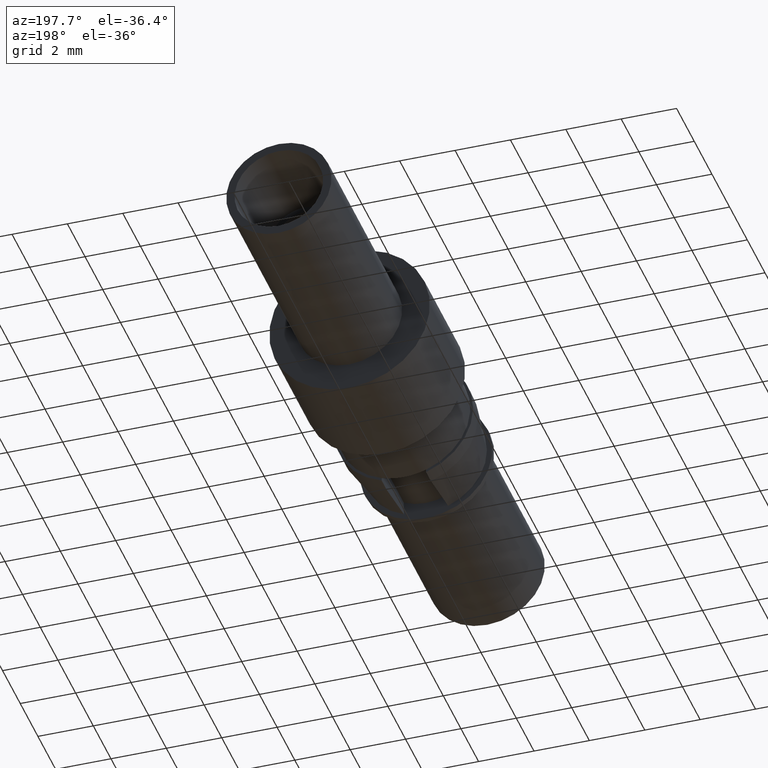
[diagram: clean part render]
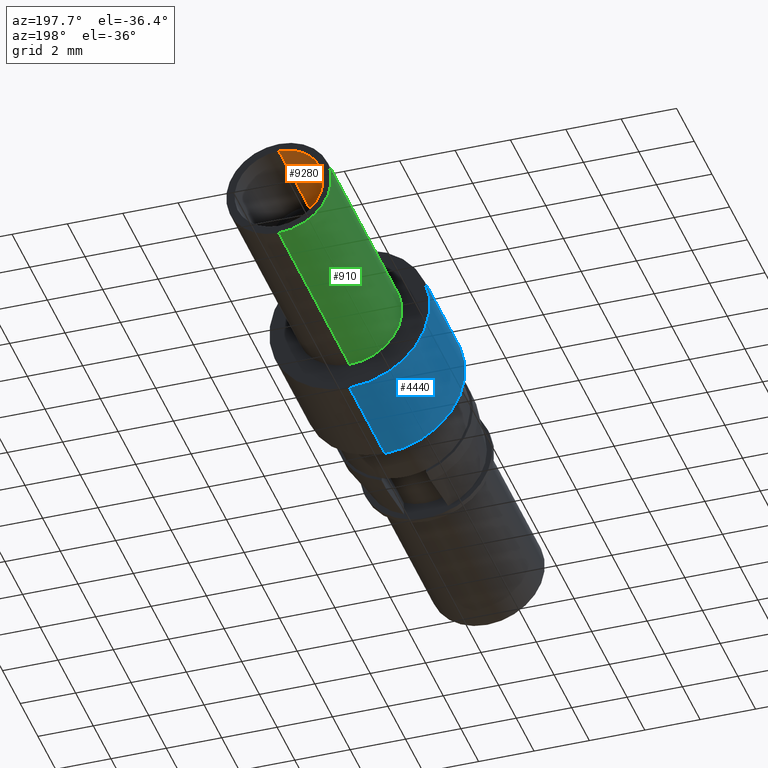
[diagram: same view with three faces highlighted in distinct colors, each labeled with its STEP entity id]
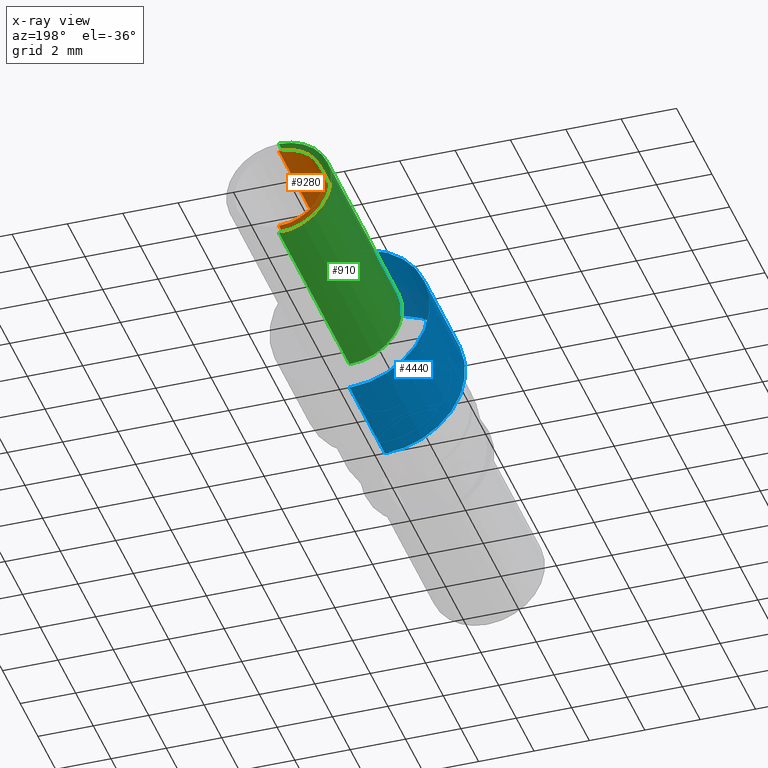
[diagram: x-ray of the same camera — body ghosted, the three highlighted faces saturated]
A machine part, auxiliary view with three faces highlighted in distinct colors.
The next image is the same camera in x-ray (body ghosted, the three faces saturated) — at least one of them is partly hidden behind the body in this view.
Their STEP definitions:

[orange] entity #9280 — the highlighted cylindrical surface (partial cylindrical patch) has radius 1.6 mm, axis along (0, 1, -0).
#1860=CARTESIAN_POINT('',(66.6468230000002,77.3795149999963,
-5.24999999999949));
#1870=DIRECTION('',(0.,0.,1.));
#1880=DIRECTION('',(0.,1.,0.));
#1890=AXIS2_PLACEMENT_3D('',#1860,#1870,#1880);
#1900=CIRCLE('',#1890,1.6);
#1910=CARTESIAN_POINT('',(66.6468230000002,78.9795149999963,
-5.24999999999949));
#1920=VERTEX_POINT('',#1910);
#1930=CARTESIAN_POINT('',(66.6468230000002,75.7795149999963,
-5.24999999999949));
#1940=VERTEX_POINT('',#1930);
#1970=EDGE_CURVE('',#1940,#1920,#1900,.T.);
#8970=CARTESIAN_POINT('',(66.6468230000002,77.3795149999963,
-5.24999999999949));
#8980=DIRECTION('',(0.,0.,1.));
#8990=DIRECTION('',(0.,1.,0.));
#9000=AXIS2_PLACEMENT_3D('',#8970,#8980,#8990);
#9010=CYLINDRICAL_SURFACE('',#9000,1.6);
#9020=CARTESIAN_POINT('',(66.6468230000002,75.7795149999963,
-5.24999999999949));
#9030=DIRECTION('',(0.,0.,1.));
#9040=VECTOR('',#9030,1.);
#9050=LINE('',#9020,#9040);
#9060=CARTESIAN_POINT('',(66.6468230000002,75.7795149999963,
2.75000000000051));
#9070=VERTEX_POINT('',#9060);
#9080=EDGE_CURVE('',#1940,#9070,#9050,.T.);
#9090=ORIENTED_EDGE('',*,*,#9080,.T.);
#9100=ORIENTED_EDGE('',*,*,#1970,.F.);
#9110=CARTESIAN_POINT('',(66.6468230000002,78.9795149999963,
-5.24999999999949));
#9120=DIRECTION('',(0.,0.,1.));
#9130=VECTOR('',#9120,1.);
#9140=LINE('',#9110,#9130);
#9150=CARTESIAN_POINT('',(66.6468230000002,78.9795149999963,
2.75000000000051));
#9160=VERTEX_POINT('',#9150);
#9170=EDGE_CURVE('',#1920,#9160,#9140,.T.);
#9180=ORIENTED_EDGE('',*,*,#9170,.F.);
#9190=CARTESIAN_POINT('',(66.6468230000002,77.3795149999963,
2.75000000000051));
#9200=DIRECTION('',(0.,0.,1.));
#9210=DIRECTION('',(0.,1.,0.));
#9220=AXIS2_PLACEMENT_3D('',#9190,#9200,#9210);
#9230=CIRCLE('',#9220,1.6);
#9240=EDGE_CURVE('',#9070,#9160,#9230,.T.);
#9250=ORIENTED_EDGE('',*,*,#9240,.T.);
#9260=EDGE_LOOP('',(#9250,#9180,#9100,#9090));
#9270=FACE_OUTER_BOUND('',#9260,.T.);
#9280=ADVANCED_FACE('',(#9270),#9010,.F.);

[blue] entity #4440 — the highlighted cylindrical surface (partial cylindrical patch) has radius 2.9 mm, axis along (-0, -1, 0).
#3110=CARTESIAN_POINT('',(66.6468230000002,77.3795149999963,
-5.24999999999949));
#3120=DIRECTION('',(0.,0.,-1.));
#3130=DIRECTION('',(0.,-1.,0.));
#3140=AXIS2_PLACEMENT_3D('',#3110,#3120,#3130);
#3150=CIRCLE('',#3140,2.9);
#3160=CARTESIAN_POINT('',(66.6468230000002,74.4795149999963,
-5.24999999999949));
#3170=VERTEX_POINT('',#3160);
#3180=CARTESIAN_POINT('',(66.6468230000002,80.2795149999963,
-5.24999999999949));
#3190=VERTEX_POINT('',#3180);
#3220=EDGE_CURVE('',#3190,#3170,#3150,.T.);
#4130=CARTESIAN_POINT('',(66.6468230000002,77.3795149999963,
-2.07500099999949));
#4140=DIRECTION('',(0.,0.,-1.));
#4150=DIRECTION('',(0.,-1.,0.));
#4160=AXIS2_PLACEMENT_3D('',#4130,#4140,#4150);
#4170=CYLINDRICAL_SURFACE('',#4160,2.9);
#4180=CARTESIAN_POINT('',(66.6468230000002,74.4795149999963,
-2.07500099999949));
#4190=DIRECTION('',(0.,0.,-1.));
#4200=VECTOR('',#4190,1.);
#4210=LINE('',#4180,#4200);
#4220=CARTESIAN_POINT('',(66.6468230000002,74.4795149999963,
-9.2499999999995));
#4230=VERTEX_POINT('',#4220);
#4240=EDGE_CURVE('',#3170,#4230,#4210,.T.);
#4250=ORIENTED_EDGE('',*,*,#4240,.T.);
#4260=ORIENTED_EDGE('',*,*,#3220,.T.);
#4270=CARTESIAN_POINT('',(66.6468230000002,80.2795149999963,
-2.07500099999949));
#4280=DIRECTION('',(0.,0.,-1.));
#4290=VECTOR('',#4280,1.);
#4300=LINE('',#4270,#4290);
#4310=CARTESIAN_POINT('',(66.6468230000002,80.2795149999963,
-9.2499999999995));
#4320=VERTEX_POINT('',#4310);
#4330=EDGE_CURVE('',#3190,#4320,#4300,.T.);
#4340=ORIENTED_EDGE('',*,*,#4330,.F.);
#4350=CARTESIAN_POINT('',(66.6468230000002,77.3795149999963,
-9.2499999999995));
#4360=DIRECTION('',(0.,0.,-1.));
#4370=DIRECTION('',(0.,-1.,0.));
#4380=AXIS2_PLACEMENT_3D('',#4350,#4360,#4370);
#4390=CIRCLE('',#4380,2.9);
#4400=EDGE_CURVE('',#4320,#4230,#4390,.T.);
#4410=ORIENTED_EDGE('',*,*,#4400,.F.);
#4420=EDGE_LOOP('',(#4410,#4340,#4260,#4250));
#4430=FACE_OUTER_BOUND('',#4420,.T.);
#4440=ADVANCED_FACE('',(#4430),#4170,.T.);

[green] entity #910 — the highlighted cylindrical surface (partial cylindrical patch) has radius 1.9 mm, axis along (0, 1, -0).
#500=CARTESIAN_POINT('',(66.6468230000002,77.3795149999963,
-5.24999999999949));
#510=DIRECTION('',(0.,0.,1.));
#520=DIRECTION('',(0.,1.,0.));
#530=AXIS2_PLACEMENT_3D('',#500,#510,#520);
#540=CYLINDRICAL_SURFACE('',#530,1.9);
#550=CARTESIAN_POINT('',(66.6468230000002,79.2795149999963,
-5.24999999999949));
#560=DIRECTION('',(0.,0.,1.));
#570=VECTOR('',#560,1.);
#580=LINE('',#550,#570);
#590=CARTESIAN_POINT('',(66.6468230000002,79.2795149999963,
-5.24999999999949));
#600=VERTEX_POINT('',#590);
#610=CARTESIAN_POINT('',(66.6468230000002,79.2795149999963,
2.75000000000051));
#620=VERTEX_POINT('',#610);
#630=EDGE_CURVE('',#600,#620,#580,.T.);
#640=ORIENTED_EDGE('',*,*,#630,.T.);
#650=CARTESIAN_POINT('',(66.6468230000002,77.3795149999963,
-5.24999999999949));
#660=DIRECTION('',(0.,0.,1.));
#670=DIRECTION('',(0.,1.,0.));
#680=AXIS2_PLACEMENT_3D('',#650,#660,#670);
#690=CIRCLE('',#680,1.9);
#700=CARTESIAN_POINT('',(66.6468230000002,75.4795149999963,
-5.24999999999949));
#710=VERTEX_POINT('',#700);
#720=EDGE_CURVE('',#710,#600,#690,.T.);
#730=ORIENTED_EDGE('',*,*,#720,.T.);
#740=CARTESIAN_POINT('',(66.6468230000002,75.4795149999963,
-5.24999999999949));
#750=DIRECTION('',(0.,0.,1.));
#760=VECTOR('',#750,1.);
#770=LINE('',#740,#760);
#780=CARTESIAN_POINT('',(66.6468230000002,75.4795149999963,
2.75000000000051));
#790=VERTEX_POINT('',#780);
#800=EDGE_CURVE('',#710,#790,#770,.T.);
#810=ORIENTED_EDGE('',*,*,#800,.F.);
#820=CARTESIAN_POINT('',(66.6468230000002,77.3795149999963,
2.75000000000051));
#830=DIRECTION('',(0.,0.,1.));
#840=DIRECTION('',(0.,1.,0.));
#850=AXIS2_PLACEMENT_3D('',#820,#830,#840);
#860=CIRCLE('',#850,1.9);
#870=EDGE_CURVE('',#790,#620,#860,.T.);
#880=ORIENTED_EDGE('',*,*,#870,.F.);
#890=EDGE_LOOP('',(#880,#810,#730,#640));
#900=FACE_OUTER_BOUND('',#890,.T.);
#910=ADVANCED_FACE('',(#900),#540,.T.);